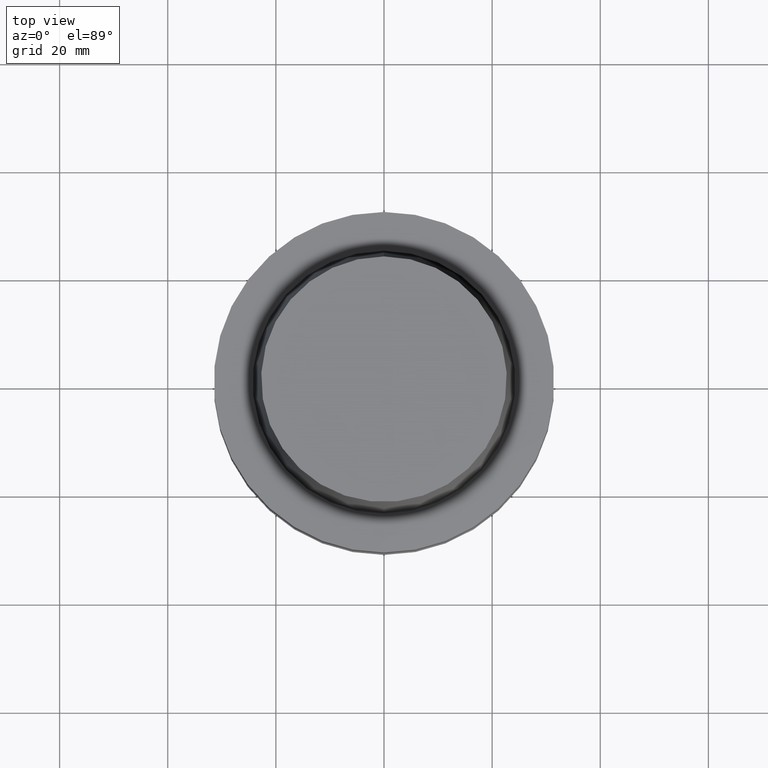
[diagram: clean part render]
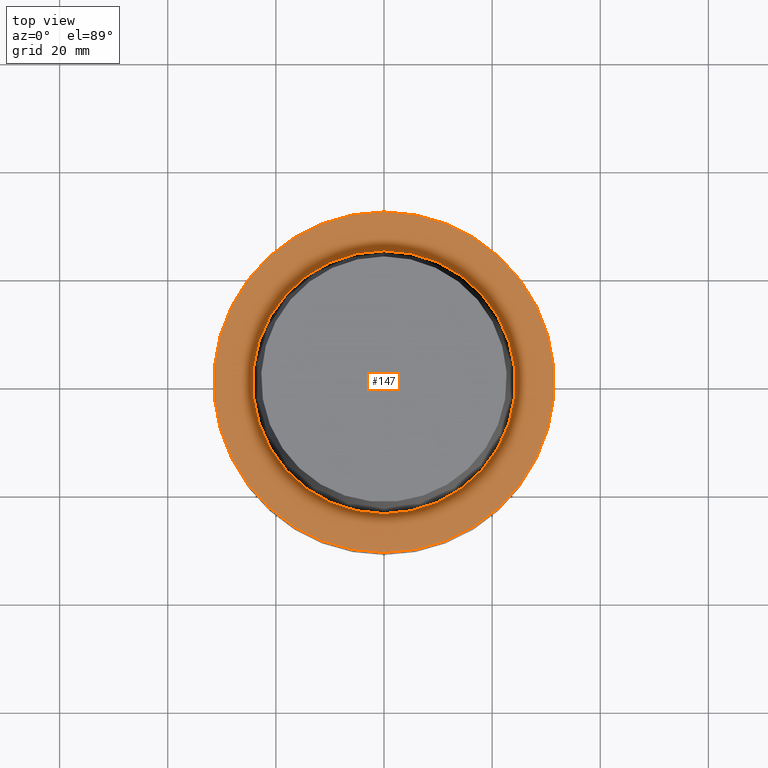
[diagram: same view with one face highlighted and labeled with its STEP entity id]
A machine part, top view. The second image highlights one B-rep face of the part: STEP entity #147.
In plain terms, the highlighted planar face has unit normal (-0, -0, 1).
Its self-contained STEP definition (entity closure, byte-faithful):
#89=EDGE_CURVE('Unnamed[1]',#233,#233,#234,.T.);
#133=EDGE_CURVE('Unnamed[1]',#300,#300,#301,.T.);
#147=ADVANCED_FACE('Unnamed[1]',(#320,#321),#322,.T.);
#233=VERTEX_POINT('',#435);
#234=CIRCLE('',#436,31.5000000000001);
#300=VERTEX_POINT('',#520);
#301=CIRCLE('',#521,24.315);
#320=FACE_BOUND('',#544,.T.);
#321=FACE_OUTER_BOUND('',#545,.T.);
#322=PLANE('',#546);
#435=CARTESIAN_POINT('',(-3.88267476788467E-031,31.5000000000001,3.85763741731417E-015));
#436=AXIS2_PLACEMENT_3D('',#665,#666,#667);
#520=CARTESIAN_POINT('',(-2.99705514225764E-031,24.315,2.97772869212679E-015));
#521=AXIS2_PLACEMENT_3D('',#740,#741,#742);
#544=EDGE_LOOP('',(#760));
#545=EDGE_LOOP('',(#761));
#546=AXIS2_PLACEMENT_3D('',#762,#763,#764);
#665=CARTESIAN_POINT('',(0.0,0.0,0.0));
#666=DIRECTION('',(-6.12323399573677E-017,-1.22464679914735E-016,1.0));
#667=DIRECTION('',(-1.23259516440783E-032,1.0,1.22464679914735E-016));
#740=CARTESIAN_POINT('',(0.0,0.0,0.0));
#741=DIRECTION('',(-6.12323399573677E-017,-1.22464679914735E-016,1.0));
#742=DIRECTION('',(-1.23259516440783E-032,1.0,1.22464679914735E-016));
#760=ORIENTED_EDGE('',*,*,#133,.F.);
#761=ORIENTED_EDGE('',*,*,#89,.T.);
#762=CARTESIAN_POINT('',(-3.43986495507116E-031,27.9075,3.41768305472048E-015));
#763=DIRECTION('',(-6.12323399573677E-017,-1.22464679914735E-016,1.0));
#764=DIRECTION('',(-1.23259516440783E-032,1.0,1.22464679914735E-016));